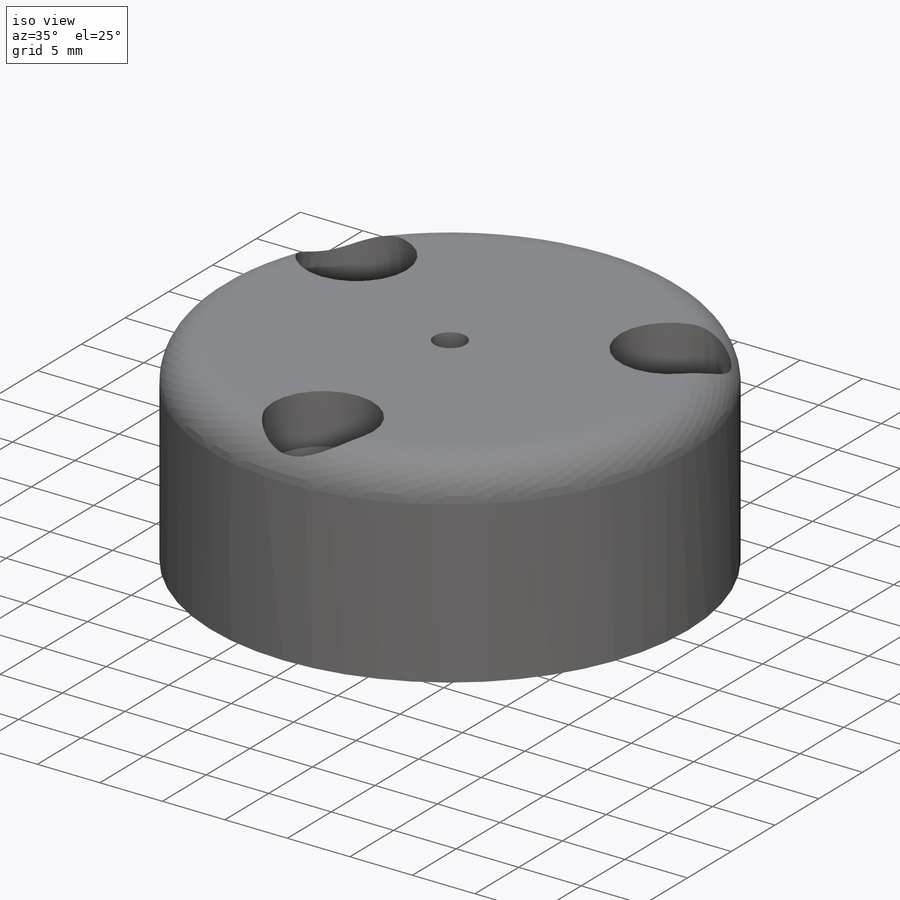
[diagram: iso view]
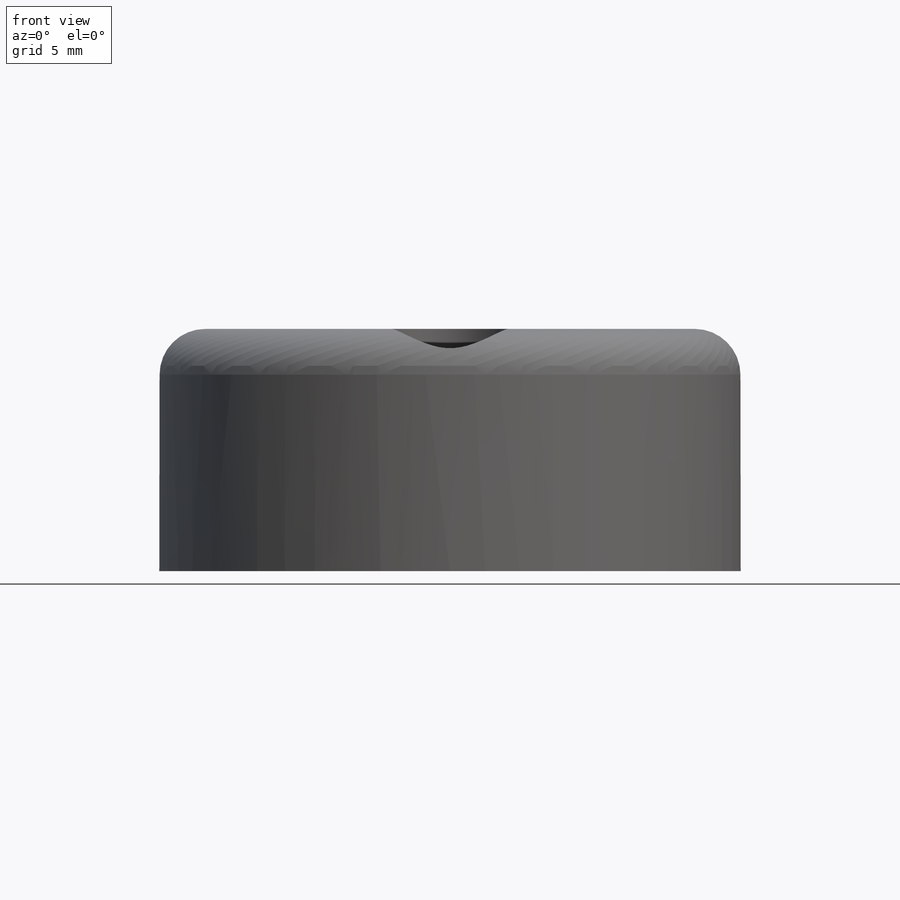
[diagram: front view]
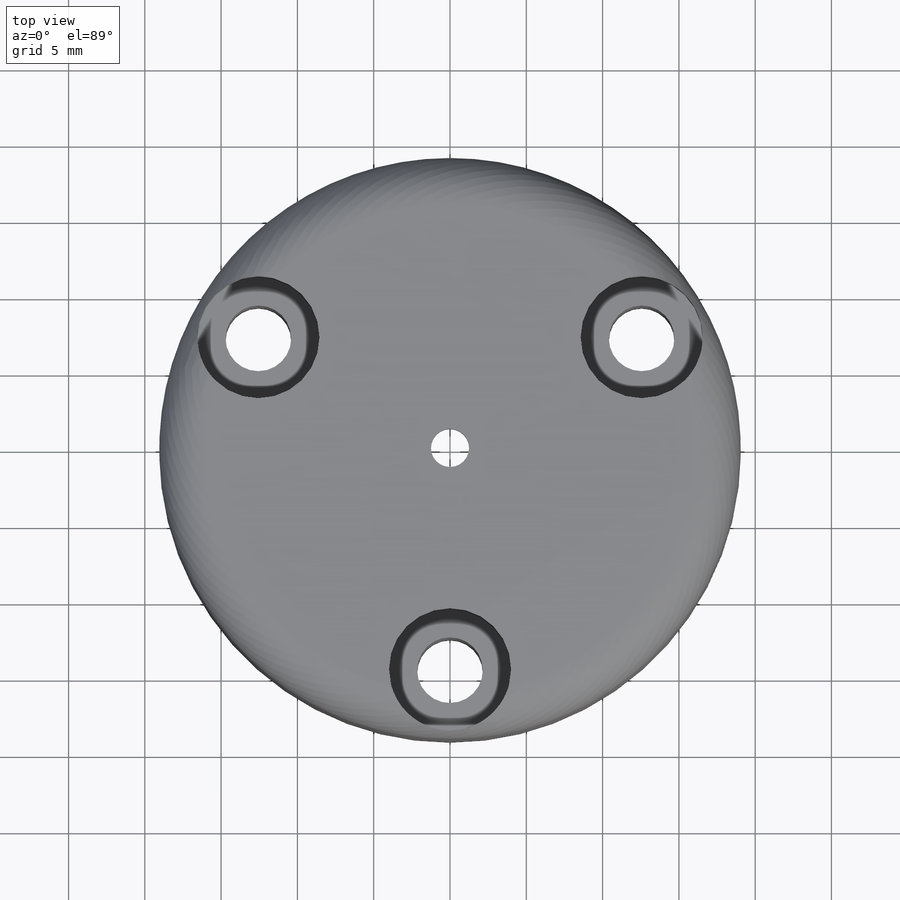
[diagram: top view]
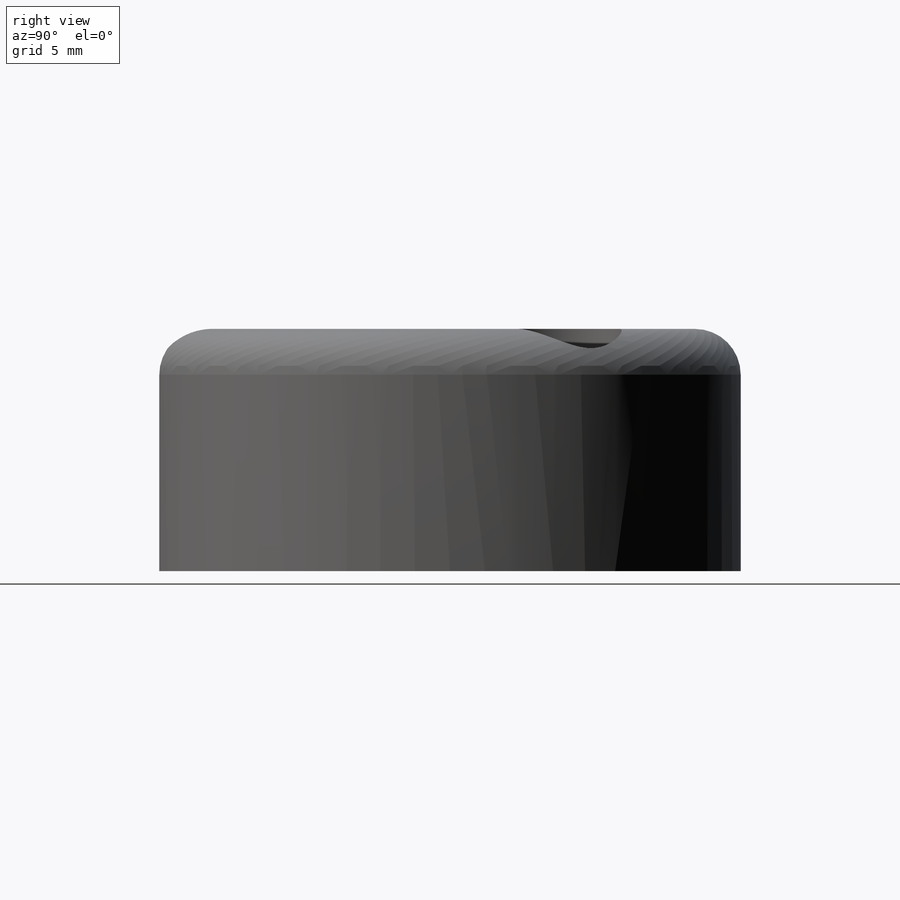
[diagram: right view]
SOLIDWORKS PART (.sldprt)
format: sldprt  version: not decoded by parser v0  size: 321,024 bytes
history: native  units: mm
features: sketch x8, cut_extrude x3, hole x2, pattern_circular x2, material x1, extrude x1, thread x1, fillet x1 (+16 scaffold rows collapsed)
feature tree (35):
  scaffold x16  (default folders/planes/origin — collapsed)
  material  "Stainless Steel (ferritic)"
  sketch  "Sketch1"  dims[D1=38.1mm]
  extrude  "Boss-Extrude1"  Depth=15.875mm
  sketch  "Sketch2"  dims[D1=14.0mm]
  cut_extrude  "Cut-Extrude1"  Depth=7mm
  sketch  "Sketch3"  dims[D1=~2.63969mm]
  cut_extrude  "Cut-Extrude2"  Depth=7mm
  hole  "M3x0.5 Tapped Hole1"  Diameter=2.5mm Depth=1.875mm
  sketch  "Sketch5"
  sketch  "Sketch4"  dims[hole-wizard template sketch: 60 standard entries collapsed; hole parameters kept: c18.Thru Tap Drill Depth=1.875mm]
  thread  "Hole Thread1"  Diameter=3mm  [1 undecoded]
  hole  "CBORE for M4 SHCS1"  Diameter=4.3mm Depth=15.875mm
  sketch  "Sketch8"  dims[D1=14.5mm]
  sketch  "Sketch7"  dims[hole-wizard template sketch: 42 standard entries collapsed; hole parameters kept: c12.Thru Hole Depth=15.875mm c12.C'Bore Dia.=8.0mm c12.C'Bore Depth=4.0mm]
  pattern_circular  "CirPattern1"  Count=3 Angle=360deg
  fillet  "Fillet1"  Radius=3mm
  sketch  "Sketch9"  dims[c1.D1=5.0mm c1.D2=~14.096597mm c2.D2=60.0deg]
  cut_extrude  "Cut-Extrude3"  Depth=10mm
  pattern_circular  "CirPattern2"  Count=3 Angle=360deg
decode coverage: 17 of 18 modeling features carry decoded parameters
note: ~ marks probable driven/reference dimensions
note: 1 parameter value undecoded
note: suppression state not decoded; provenance and decode notes live in map.json
